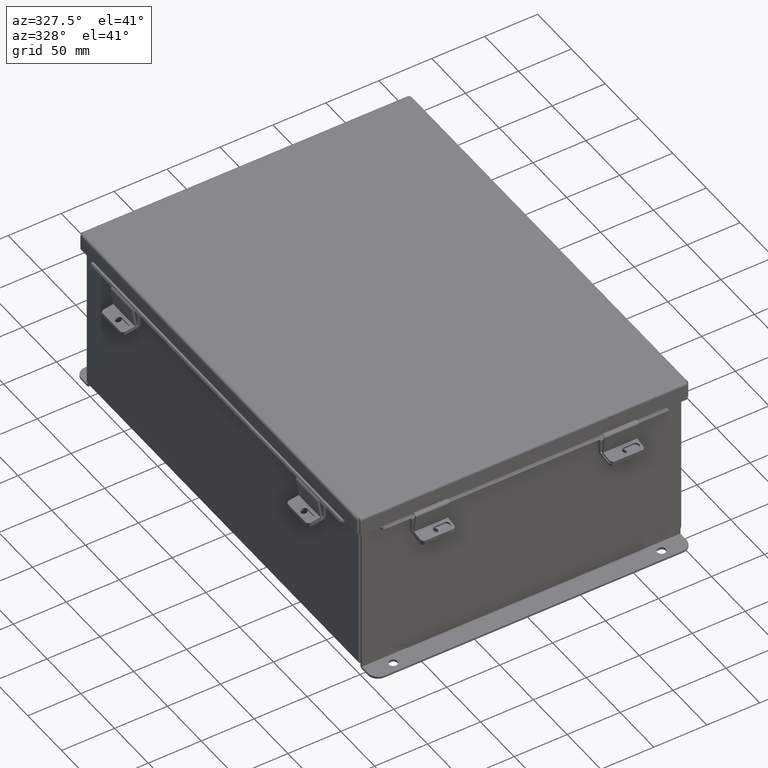
[diagram: clean part render]
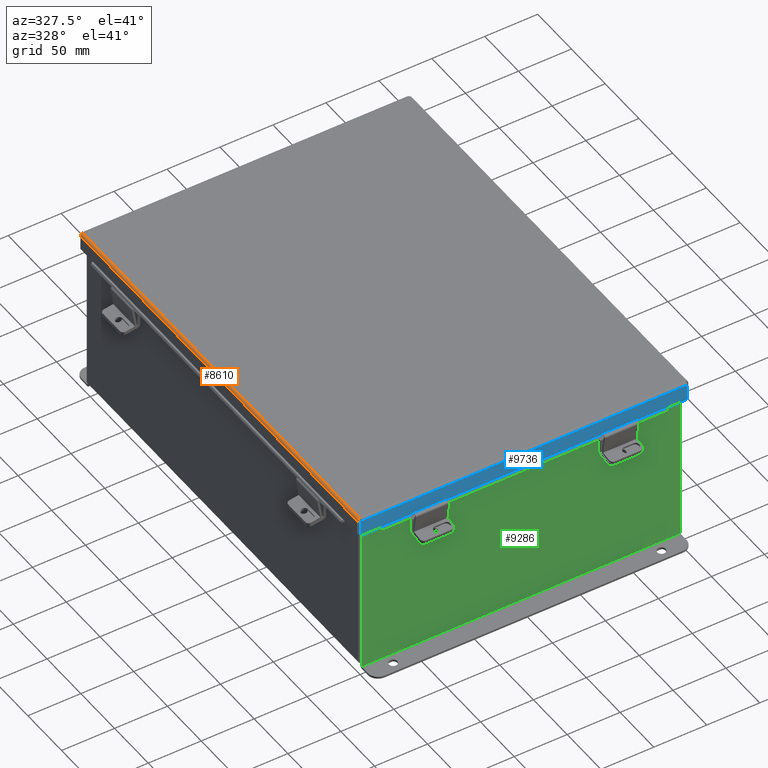
[diagram: same view with three faces highlighted in distinct colors, each labeled with its STEP entity id]
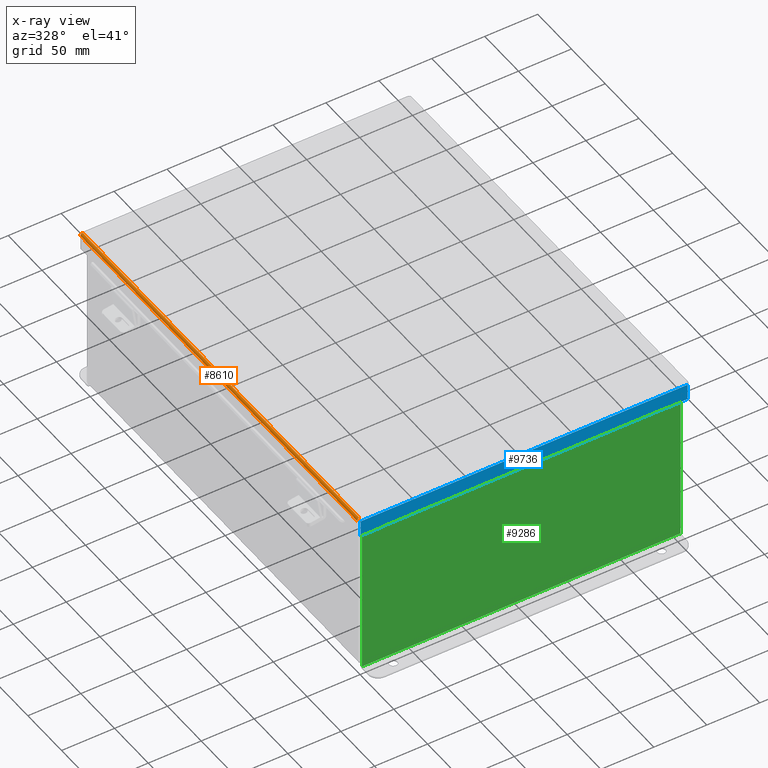
[diagram: x-ray of the same camera — body ghosted, the three highlighted faces saturated]
A machine part, auxiliary view with three faces highlighted in distinct colors.
The next image is the same camera in x-ray (body ghosted, the three faces saturated) — at least one of them is partly hidden behind the body in this view.
Their STEP definitions:

[orange] entity #8610 — the highlighted cylindrical surface (edge-blend (fillet) strip) has radius 2.2276 mm, axis along (0, 1, 0).
#2 = CARTESIAN_POINT ( 'NONE',  ( 6.122445747341820300, 8.071020388411732000, -0.05713078207831978600 ) ) ;
#608 = DIRECTION ( 'NONE',  ( 3.166671605124525800E-030, 1.000000000000000000, 1.853823127269377700E-029 ) ) ;
#718 = VERTEX_POINT ( 'NONE', #8453 ) ;
#1000 = CARTESIAN_POINT ( 'NONE',  ( 6.156250000000017800, 8.074478932188144500, 0.01300000000000120000 ) ) ;
#1167 = CARTESIAN_POINT ( 'NONE',  ( 6.091505289458327300, -8.069538155364680800, -0.07241740374381171200 ) ) ;
#1241 = FACE_OUTER_BOUND ( 'NONE', #6094, .T. ) ;
#1573 = CARTESIAN_POINT ( 'NONE',  ( 6.080029903155012700, 8.069044077682352900, -0.07470000000000029400 ) ) ;
#1579 = B_SPLINE_CURVE_WITH_KNOTS ( 'NONE', 3,
 ( #3072, #4545, #1167, #8945, #4684, #6631, #8385, #6601, #8291, #7703 ),
 .UNSPECIFIED., .F., .F.,
 ( 4, 2, 2, 2, 4 ),
 ( 0.0000000000000000000, 0.2500000000000000000, 0.5000000000000000000, 0.7500000000000000000, 1.000000000000000000 ),
 .UNSPECIFIED. ) ;
#1717 = AXIS2_PLACEMENT_3D ( 'NONE', #9679, #608, #5756 ) ;
#2458 = DIRECTION ( 'NONE',  ( -3.434145350772596800E-030, -1.000000000000000000, -6.698784352282061800E-017 ) ) ;
#2560 = CARTESIAN_POINT ( 'NONE',  ( 6.068550000000017000, -8.068549999999991200, -0.07469999999999142600 ) ) ;
#2736 = ORIENTED_EDGE ( 'NONE', *, *, #7626, .F. ) ;
#3017 = EDGE_CURVE ( 'NONE', #718, #9809, #3023, .T. ) ;
#3023 = LINE ( 'NONE', #4124, #3336 ) ;
#3072 = CARTESIAN_POINT ( 'NONE',  ( 6.068550000000017000, -8.068549999999991200, -0.07469999999999142600 ) ) ;
#3323 = ORIENTED_EDGE ( 'NONE', *, *, #3017, .T. ) ;
#3336 = VECTOR ( 'NONE', #2458, 39.37007874015748100 ) ;
#3447 = EDGE_CURVE ( 'NONE', #5616, #9251, #5359, .T. ) ;
#3542 = EDGE_CURVE ( 'NONE', #718, #5616, #5403, .T. ) ;
#3719 = CARTESIAN_POINT ( 'NONE',  ( 6.156250000000018700, 8.073984854505800600, 0.001520096845010389000 ) ) ;
#3788 = DIRECTION ( 'NONE',  ( -3.166671605124525800E-030, -1.000000000000000000, -1.853823127269377700E-029 ) ) ;
#4124 = CARTESIAN_POINT ( 'NONE',  ( 6.156250000000017800, -8.156249999999991100, 0.01300000000000010700 ) ) ;
#4545 = CARTESIAN_POINT ( 'NONE',  ( 6.080029903155008200, -8.069044077682335100, -0.07470000000000030800 ) ) ;
#4602 = ORIENTED_EDGE ( 'NONE', *, *, #3542, .F. ) ;
#4684 = CARTESIAN_POINT ( 'NONE',  ( 6.122445747341816800, -8.071020388411714200, -0.05713078207832161100 ) ) ;
#5202 = CARTESIAN_POINT ( 'NONE',  ( 6.156250000000017800, -8.074478932188126700, 0.01300000000000010700 ) ) ;
#5359 = LINE ( 'NONE', #6315, #9092 ) ;
#5403 = B_SPLINE_CURVE_WITH_KNOTS ( 'NONE', 3,
 ( #1000, #3719, #6020, #6184, #6622, #2, #9358, #9289, #1573, #7513 ),
 .UNSPECIFIED., .F., .F.,
 ( 4, 2, 2, 2, 4 ),
 ( 0.0000000000000000000, 0.2500000000000000600, 0.5000000000000000000, 0.7500000000000000000, 1.000000000000000000 ),
 .UNSPECIFIED. ) ;
#5616 = VERTEX_POINT ( 'NONE', #7539 ) ;
#5756 = DIRECTION ( 'NONE',  ( 1.000000000000000000, 0.0000000000000000000, -3.966747639032868000E-015 ) ) ;
#6020 = CARTESIAN_POINT ( 'NONE',  ( 6.153967403743830100, 8.073490776823455000, -0.009955289458306192500 ) ) ;
#6094 = EDGE_LOOP ( 'NONE', ( #7947, #4602, #3323, #2736 ) ) ;
#6184 = CARTESIAN_POINT ( 'NONE',  ( 6.145181066258687400, 8.072502621458765400, -0.03116738457852605600 ) ) ;
#6315 = CARTESIAN_POINT ( 'NONE',  ( 6.068550000000017000, 8.074478932188144500, -0.07470000000000015500 ) ) ;
#6601 = CARTESIAN_POINT ( 'NONE',  ( 6.153967403743830100, -8.073490776823439000, -0.009955289458312088800 ) ) ;
#6622 = CARTESIAN_POINT ( 'NONE',  ( 6.138680782078338000, 8.072008543776421500, -0.04089574734179866200 ) ) ;
#6631 = CARTESIAN_POINT ( 'NONE',  ( 6.138680782078337100, -8.072008543776403800, -0.04089574734180201300 ) ) ;
#7239 = CYLINDRICAL_SURFACE ( 'NONE', #1717, 0.08770000000000026400 ) ;
#7513 = CARTESIAN_POINT ( 'NONE',  ( 6.068550000000017000, 8.068550000000009000, -0.07470000000000015500 ) ) ;
#7539 = CARTESIAN_POINT ( 'NONE',  ( 6.068550000000017000, 8.068550000000009000, -0.07470000000000015500 ) ) ;
#7626 = EDGE_CURVE ( 'NONE', #9251, #9809, #1579, .T. ) ;
#7703 = CARTESIAN_POINT ( 'NONE',  ( 6.156250000000017800, -8.074478932188126700, 0.01300000000000010700 ) ) ;
#7947 = ORIENTED_EDGE ( 'NONE', *, *, #3447, .F. ) ;
#8291 = CARTESIAN_POINT ( 'NONE',  ( 6.156250000000017800, -8.073984854505782800, 0.001520096845003696200 ) ) ;
#8385 = CARTESIAN_POINT ( 'NONE',  ( 6.145181066258686500, -8.072502621458749400, -0.03116738457853026800 ) ) ;
#8453 = CARTESIAN_POINT ( 'NONE',  ( 6.156250000000017800, 8.074478932188144500, 0.01300000000000120000 ) ) ;
#8610 = ADVANCED_FACE ( 'NONE', ( #1241 ), #7239, .T. ) ;
#8945 = CARTESIAN_POINT ( 'NONE',  ( 6.112717384578544100, -8.070526310729370300, -0.06363106625866928000 ) ) ;
#9092 = VECTOR ( 'NONE', #3788, 39.37007874015748100 ) ;
#9251 = VERTEX_POINT ( 'NONE', #2560 ) ;
#9289 = CARTESIAN_POINT ( 'NONE',  ( 6.091505289458326400, 8.069538155364698500, -0.07241740374381146200 ) ) ;
#9358 = CARTESIAN_POINT ( 'NONE',  ( 6.112717384578546700, 8.070526310729386300, -0.06363106625866812900 ) ) ;
#9679 = CARTESIAN_POINT ( 'NONE',  ( 6.068550000000017000, 8.074478932188144500, 0.01300000000000010700 ) ) ;
#9809 = VERTEX_POINT ( 'NONE', #5202 ) ;

[blue] entity #9736 — the highlighted planar face has unit normal (0, 1, -0).
#342 = VERTEX_POINT ( 'NONE', #6961 ) ;
#352 = ORIENTED_EDGE ( 'NONE', *, *, #1792, .F. ) ;
#395 = CARTESIAN_POINT ( 'NONE',  ( -6.074478932188153400, -8.156249999999991100, 0.0000000000000000000 ) ) ;
#934 = CARTESIAN_POINT ( 'NONE',  ( 6.074478932188154300, -8.156249999999992900, 0.6122999999999994000 ) ) ;
#978 = ORIENTED_EDGE ( 'NONE', *, *, #7595, .F. ) ;
#981 = VECTOR ( 'NONE', #7514, 39.37007874015748100 ) ;
#1089 = DIRECTION ( 'NONE',  ( -1.000000000000000000, -3.191323508412550700E-030, -0.0000000000000000000 ) ) ;
#1265 = EDGE_LOOP ( 'NONE', ( #4570, #1284, #2157, #352, #5495, #1754, #978, #1343 ) ) ;
#1284 = ORIENTED_EDGE ( 'NONE', *, *, #2011, .T. ) ;
#1343 = ORIENTED_EDGE ( 'NONE', *, *, #6353, .F. ) ;
#1464 = DIRECTION ( 'NONE',  ( -1.000000000000000000, -3.216696931258641000E-030, 5.546899479520625800E-018 ) ) ;
#1597 = DIRECTION ( 'NONE',  ( 7.009925220120862500E-014, 2.102977566036251300E-013, -1.000000000000000000 ) ) ;
#1599 = VECTOR ( 'NONE', #3129, 39.37007874015748100 ) ;
#1729 = CARTESIAN_POINT ( 'NONE',  ( -5.324478932188150700, -8.156249999999991100, 0.5967115427318793200 ) ) ;
#1754 = ORIENTED_EDGE ( 'NONE', *, *, #7542, .T. ) ;
#1792 = EDGE_CURVE ( 'NONE', #342, #3508, #8306, .T. ) ;
#2011 = EDGE_CURVE ( 'NONE', #2574, #4789, #2416, .T. ) ;
#2116 = DIRECTION ( 'NONE',  ( 0.0000000000000000000, -1.401985044024136600E-013, 1.000000000000000000 ) ) ;
#2157 = ORIENTED_EDGE ( 'NONE', *, *, #2373, .F. ) ;
#2171 = DIRECTION ( 'NONE',  ( 3.183015112497910400E-030, 1.000000000000000000, 3.569293475308493700E-015 ) ) ;
#2373 = EDGE_CURVE ( 'NONE', #3508, #4789, #6356, .T. ) ;
#2386 = CARTESIAN_POINT ( 'NONE',  ( 6.074478932188153400, -8.156249999999991100, -2.950395833157404200E-014 ) ) ;
#2416 = LINE ( 'NONE', #9761, #981 ) ;
#2551 = CARTESIAN_POINT ( 'NONE',  ( -5.324478932188149800, -8.156249999999992900, 0.5967115427318793200 ) ) ;
#2555 = VECTOR ( 'NONE', #2116, 39.37007874015748100 ) ;
#2574 = VERTEX_POINT ( 'NONE', #3257 ) ;
#2650 = CARTESIAN_POINT ( 'NONE',  ( 5.324478932188150700, -8.156249999999992900, 0.5967115427318782100 ) ) ;
#2885 = DIRECTION ( 'NONE',  ( -0.0000000000000000000, -3.569293475308494500E-015, 1.000000000000000000 ) ) ;
#3129 = DIRECTION ( 'NONE',  ( 0.0000000000000000000, -3.569293475308494500E-015, 1.000000000000000000 ) ) ;
#3161 = DIRECTION ( 'NONE',  ( 1.000000000000000000, 3.215975411700707400E-030, -0.0000000000000000000 ) ) ;
#3257 = CARTESIAN_POINT ( 'NONE',  ( -5.324478932188150700, -8.156249999999992900, 0.6123000000000015100 ) ) ;
#3508 = VERTEX_POINT ( 'NONE', #6967 ) ;
#3641 = CARTESIAN_POINT ( 'NONE',  ( 5.324478932188149800, -8.156249999999992900, 0.6122999999999994000 ) ) ;
#3992 = AXIS2_PLACEMENT_3D ( 'NONE', #5116, #2171, #7359 ) ;
#4570 = ORIENTED_EDGE ( 'NONE', *, *, #5522, .F. ) ;
#4772 = VERTEX_POINT ( 'NONE', #3641 ) ;
#4789 = VERTEX_POINT ( 'NONE', #7485 ) ;
#4890 = FACE_OUTER_BOUND ( 'NONE', #1265, .T. ) ;
#4895 = LINE ( 'NONE', #1729, #7335 ) ;
#4999 = VERTEX_POINT ( 'NONE', #934 ) ;
#5116 = CARTESIAN_POINT ( 'NONE',  ( 0.0000000000000000000, -8.156249999999991100, -2.950395833157404200E-014 ) ) ;
#5408 = VERTEX_POINT ( 'NONE', #2650 ) ;
#5495 = ORIENTED_EDGE ( 'NONE', *, *, #8308, .T. ) ;
#5522 = EDGE_CURVE ( 'NONE', #2574, #7922, #7121, .T. ) ;
#5815 = VECTOR ( 'NONE', #1597, 39.37007874015748100 ) ;
#6209 = CARTESIAN_POINT ( 'NONE',  ( -5.324478932188150700, -8.156249999999994700, 0.6122999999999994000 ) ) ;
#6261 = CARTESIAN_POINT ( 'NONE',  ( 5.324478932188150700, -8.156249999999991100, 0.5967115427318782100 ) ) ;
#6353 = EDGE_CURVE ( 'NONE', #7922, #5408, #4895, .T. ) ;
#6356 = LINE ( 'NONE', #395, #6460 ) ;
#6429 = CARTESIAN_POINT ( 'NONE',  ( -6.156250000000015100, -8.156249999999991100, 0.01300000000000010700 ) ) ;
#6460 = VECTOR ( 'NONE', #2885, 39.37007874015748100 ) ;
#6572 = PLANE ( 'NONE',  #3992 ) ;
#6933 = VECTOR ( 'NONE', #1089, 39.37007874015748100 ) ;
#6961 = CARTESIAN_POINT ( 'NONE',  ( 6.074478932188154300, -8.156249999999991100, 0.01299999999999901400 ) ) ;
#6967 = CARTESIAN_POINT ( 'NONE',  ( -6.074478932188154300, -8.156249999999991100, 0.01300000000000010700 ) ) ;
#7121 = LINE ( 'NONE', #6209, #5815 ) ;
#7125 = LINE ( 'NONE', #2386, #1599 ) ;
#7335 = VECTOR ( 'NONE', #3161, 39.37007874015748100 ) ;
#7359 = DIRECTION ( 'NONE',  ( 0.0000000000000000000, -3.569293475308493700E-015, 1.000000000000000000 ) ) ;
#7485 = CARTESIAN_POINT ( 'NONE',  ( -6.074478932188153400, -8.156249999999992900, 0.6123000000000005100 ) ) ;
#7514 = DIRECTION ( 'NONE',  ( -1.000000000000000000, -3.216696931258641000E-030, 5.546899479520625800E-018 ) ) ;
#7542 = EDGE_CURVE ( 'NONE', #4999, #4772, #8963, .T. ) ;
#7595 = EDGE_CURVE ( 'NONE', #5408, #4772, #9608, .T. ) ;
#7632 = CARTESIAN_POINT ( 'NONE',  ( 1.173840934777613000E-017, -8.156249999999992900, 0.6122999999999994000 ) ) ;
#7922 = VERTEX_POINT ( 'NONE', #2551 ) ;
#8306 = LINE ( 'NONE', #6429, #6933 ) ;
#8308 = EDGE_CURVE ( 'NONE', #342, #4999, #7125, .T. ) ;
#8600 = VECTOR ( 'NONE', #1464, 39.37007874015748100 ) ;
#8963 = LINE ( 'NONE', #7632, #8600 ) ;
#9608 = LINE ( 'NONE', #6261, #2555 ) ;
#9736 = ADVANCED_FACE ( 'NONE', ( #4890 ), #6572, .F. ) ;
#9761 = CARTESIAN_POINT ( 'NONE',  ( 1.173840934777613000E-017, -8.156249999999992900, 0.6122999999999994000 ) ) ;

[green] entity #9286 — the highlighted planar face has unit normal (-0, 1, -0).
#101 = CARTESIAN_POINT ( 'NONE',  ( 5.925300000000008000, 8.741913579725642300E-015, 2.925299999999999100 ) ) ;
#104 = EDGE_CURVE ( 'NONE', #4118, #4541, #1753, .T. ) ;
#137 = LINE ( 'NONE', #7509, #251 ) ;
#251 = VECTOR ( 'NONE', #9137, 39.37007874015748100 ) ;
#329 = VERTEX_POINT ( 'NONE', #1434 ) ;
#427 = DIRECTION ( 'NONE',  ( 0.0000000000000000000, 0.0000000000000000000, -1.000000000000000000 ) ) ;
#468 = CARTESIAN_POINT ( 'NONE',  ( 5.619650000000008900, 8.741913579725642300E-015, 2.925300000000000000 ) ) ;
#613 = LINE ( 'NONE', #3868, #6023 ) ;
#746 = DIRECTION ( 'NONE',  ( 0.0000000000000000000, 0.0000000000000000000, -1.000000000000000000 ) ) ;
#936 = EDGE_CURVE ( 'NONE', #5629, #329, #4075, .T. ) ;
#1067 = DIRECTION ( 'NONE',  ( 0.0000000000000000000, 0.0000000000000000000, -1.000000000000000000 ) ) ;
#1147 = DIRECTION ( 'NONE',  ( 4.910036603141682400E-031, 1.000000000000000000, -0.0000000000000000000 ) ) ;
#1248 = DIRECTION ( 'NONE',  ( 0.0000000000000000000, 0.0000000000000000000, 1.000000000000000000 ) ) ;
#1299 = CARTESIAN_POINT ( 'NONE',  ( -5.925299999999992900, -8.741913579725642300E-015, -3.099299999999995500 ) ) ;
#1410 = ORIENTED_EDGE ( 'NONE', *, *, #3433, .F. ) ;
#1434 = CARTESIAN_POINT ( 'NONE',  ( 5.582300000000008000, 8.741913579725642300E-015, 2.912299999999998800 ) ) ;
#1535 = VERTEX_POINT ( 'NONE', #2561 ) ;
#1620 = DIRECTION ( 'NONE',  ( 0.0000000000000000000, 0.0000000000000000000, -1.000000000000000000 ) ) ;
#1686 = VECTOR ( 'NONE', #8564, 39.37007874015748100 ) ;
#1753 = LINE ( 'NONE', #6316, #7383 ) ;
#2002 = LINE ( 'NONE', #2076, #1686 ) ;
#2076 = CARTESIAN_POINT ( 'NONE',  ( -5.582299999999992900, 2.185478394931410600E-015, 2.912300000000000100 ) ) ;
#2242 = CARTESIAN_POINT ( 'NONE',  ( -5.925299999999992900, 0.0000000000000000000, 2.925300000000001300 ) ) ;
#2385 = ORIENTED_EDGE ( 'NONE', *, *, #2747, .T. ) ;
#2442 = FACE_OUTER_BOUND ( 'NONE', #9222, .T. ) ;
#2512 = VERTEX_POINT ( 'NONE', #5990 ) ;
#2561 = CARTESIAN_POINT ( 'NONE',  ( 5.619650000000007100, 8.741913579725642300E-015, 2.874949999999998800 ) ) ;
#2623 = EDGE_CURVE ( 'NONE', #2938, #2512, #6711, .T. ) ;
#2674 = VECTOR ( 'NONE', #3326, 39.37007874015748100 ) ;
#2747 = EDGE_CURVE ( 'NONE', #4541, #7422, #613, .T. ) ;
#2867 = VECTOR ( 'NONE', #2944, 39.37007874015748100 ) ;
#2938 = VERTEX_POINT ( 'NONE', #3496 ) ;
#2944 = DIRECTION ( 'NONE',  ( 0.0000000000000000000, 0.0000000000000000000, 1.000000000000000000 ) ) ;
#2969 = LINE ( 'NONE', #7106, #2674 ) ;
#3020 = CIRCLE ( 'NONE', #7461, 0.01867500000000003900 ) ;
#3107 = EDGE_CURVE ( 'NONE', #8510, #1535, #2969, .T. ) ;
#3308 = CARTESIAN_POINT ( 'NONE',  ( 0.0000000000000000000, 0.0000000000000000000, 0.0000000000000000000 ) ) ;
#3326 = DIRECTION ( 'NONE',  ( -2.170286390199955400E-014, -7.888609052210118100E-031, -1.000000000000000000 ) ) ;
#3428 = CARTESIAN_POINT ( 'NONE',  ( -5.619649999999991200, 0.0000000000000000000, 2.925300000000000000 ) ) ;
#3433 = EDGE_CURVE ( 'NONE', #4118, #4564, #6741, .T. ) ;
#3459 = DIRECTION ( 'NONE',  ( 0.0000000000000000000, 0.0000000000000000000, 1.000000000000000000 ) ) ;
#3496 = CARTESIAN_POINT ( 'NONE',  ( -5.582299999999991200, 2.185478394931410600E-015, 2.912300000000000100 ) ) ;
#3861 = VERTEX_POINT ( 'NONE', #6737 ) ;
#3868 = CARTESIAN_POINT ( 'NONE',  ( -5.925299999999992900, 0.0000000000000000000, 2.925300000000001300 ) ) ;
#3867 = DIRECTION ( 'NONE',  ( 0.0000000000000000000, 0.0000000000000000000, -1.000000000000000000 ) ) ;
#4075 = LINE ( 'NONE', #4550, #2867 ) ;
#4088 = PLANE ( 'NONE',  #7694 ) ;
#4118 = VERTEX_POINT ( 'NONE', #5207 ) ;
#4193 = ORIENTED_EDGE ( 'NONE', *, *, #6712, .F. ) ;
#4212 = CARTESIAN_POINT ( 'NONE',  ( -5.619650000000000000, 0.0000000000000000000, 4.370956789862821100E-015 ) ) ;
#4541 = VERTEX_POINT ( 'NONE', #2242 ) ;
#4550 = CARTESIAN_POINT ( 'NONE',  ( 5.582299999999999200, 0.0000000000000000000, 0.0000000000000000000 ) ) ;
#4563 = CARTESIAN_POINT ( 'NONE',  ( -5.582300000000000000, 0.0000000000000000000, 4.370956789862821100E-015 ) ) ;
#4564 = VERTEX_POINT ( 'NONE', #6538 ) ;
#4576 = VECTOR ( 'NONE', #1067, 39.37007874015748100 ) ;
#4671 = ORIENTED_EDGE ( 'NONE', *, *, #2623, .F. ) ;
#4744 = DIRECTION ( 'NONE',  ( 4.910036603141682400E-031, 1.000000000000000000, -0.0000000000000000000 ) ) ;
#4792 = VERTEX_POINT ( 'NONE', #4814 ) ;
#4814 = CARTESIAN_POINT ( 'NONE',  ( -5.619649999999991200, 0.0000000000000000000, 2.874949999999998800 ) ) ;
#4818 = DIRECTION ( 'NONE',  ( -4.910036603141682400E-031, -1.000000000000000000, -0.0000000000000000000 ) ) ;
#4944 = ORIENTED_EDGE ( 'NONE', *, *, #6331, .F. ) ;
#5012 = ORIENTED_EDGE ( 'NONE', *, *, #6934, .T. ) ;
#5118 = VECTOR ( 'NONE', #7002, 39.37007874015748100 ) ;
#5207 = CARTESIAN_POINT ( 'NONE',  ( -5.925299999999991100, -8.741913579725642300E-015, -3.099299999999995500 ) ) ;
#5567 = ORIENTED_EDGE ( 'NONE', *, *, #7680, .T. ) ;
#5629 = VERTEX_POINT ( 'NONE', #6899 ) ;
#5677 = LINE ( 'NONE', #4212, #8461 ) ;
#5917 = ORIENTED_EDGE ( 'NONE', *, *, #9399, .F. ) ;
#5990 = CARTESIAN_POINT ( 'NONE',  ( -5.582299999999991200, 0.0000000000000000000, 2.874949999999998800 ) ) ;
#6023 = VECTOR ( 'NONE', #7874, 39.37007874015748100 ) ;
#6080 = AXIS2_PLACEMENT_3D ( 'NONE', #8802, #4744, #3867 ) ;
#6203 = ORIENTED_EDGE ( 'NONE', *, *, #936, .F. ) ;
#6316 = CARTESIAN_POINT ( 'NONE',  ( -5.925299999999992900, 0.0000000000000000000, 2.925300000000001300 ) ) ;
#6331 = EDGE_CURVE ( 'NONE', #1535, #5629, #3020, .T. ) ;
#6459 = LINE ( 'NONE', #101, #4576 ) ;
#6538 = CARTESIAN_POINT ( 'NONE',  ( 5.925300000000008000, 0.0000000000000000000, -3.099299999999999900 ) ) ;
#6711 = LINE ( 'NONE', #4563, #8059 ) ;
#6712 = EDGE_CURVE ( 'NONE', #2512, #4792, #8880, .T. ) ;
#6737 = CARTESIAN_POINT ( 'NONE',  ( 5.925300000000008000, 8.741913579725642300E-015, 2.925299999999999100 ) ) ;
#6741 = LINE ( 'NONE', #1299, #5118 ) ;
#6899 = CARTESIAN_POINT ( 'NONE',  ( 5.582300000000008000, 8.741913579725642300E-015, 2.874949999999999700 ) ) ;
#6934 = EDGE_CURVE ( 'NONE', #2938, #329, #2002, .T. ) ;
#7002 = DIRECTION ( 'NONE',  ( 1.000000000000000000, 4.910036603141682400E-031, -0.0000000000000000000 ) ) ;
#7106 = CARTESIAN_POINT ( 'NONE',  ( 5.619649999999937000, 0.0000000000000000000, -1.218404205174261500E-013 ) ) ;
#7383 = VECTOR ( 'NONE', #1248, 39.37007874015748100 ) ;
#7422 = VERTEX_POINT ( 'NONE', #3428 ) ;
#7461 = AXIS2_PLACEMENT_3D ( 'NONE', #9232, #1147, #1620 ) ;
#7509 = CARTESIAN_POINT ( 'NONE',  ( -5.925299999999992900, 0.0000000000000000000, 2.925300000000001300 ) ) ;
#7591 = ORIENTED_EDGE ( 'NONE', *, *, #3107, .F. ) ;
#7680 = EDGE_CURVE ( 'NONE', #3861, #4564, #6459, .T. ) ;
#7694 = AXIS2_PLACEMENT_3D ( 'NONE', #3308, #4818, #427 ) ;
#7874 = DIRECTION ( 'NONE',  ( 1.000000000000000000, 4.910036603141682400E-031, 0.0000000000000000000 ) ) ;
#8059 = VECTOR ( 'NONE', #746, 39.37007874015748100 ) ;
#8215 = ORIENTED_EDGE ( 'NONE', *, *, #104, .T. ) ;
#8461 = VECTOR ( 'NONE', #3459, 39.37007874015748100 ) ;
#8510 = VERTEX_POINT ( 'NONE', #468 ) ;
#8564 = DIRECTION ( 'NONE',  ( 1.000000000000000000, 4.910036603141682400E-031, -0.0000000000000000000 ) ) ;
#8802 = CARTESIAN_POINT ( 'NONE',  ( -5.600974999999991200, 0.0000000000000000000, 2.874949999999998800 ) ) ;
#8880 = CIRCLE ( 'NONE', #6080, 0.01867500000000003900 ) ;
#9137 = DIRECTION ( 'NONE',  ( 1.000000000000000000, 4.910036603141682400E-031, 0.0000000000000000000 ) ) ;
#9222 = EDGE_LOOP ( 'NONE', ( #5917, #4193, #4671, #5012, #6203, #4944, #7591, #9673, #5567, #1410, #8215, #2385 ) ) ;
#9232 = CARTESIAN_POINT ( 'NONE',  ( 5.600975000000007100, 8.741913579725642300E-015, 2.874949999999999700 ) ) ;
#9286 = ADVANCED_FACE ( 'NONE', ( #2442 ), #4088, .F. ) ;
#9399 = EDGE_CURVE ( 'NONE', #4792, #7422, #5677, .T. ) ;
#9525 = EDGE_CURVE ( 'NONE', #8510, #3861, #137, .T. ) ;
#9673 = ORIENTED_EDGE ( 'NONE', *, *, #9525, .T. ) ;